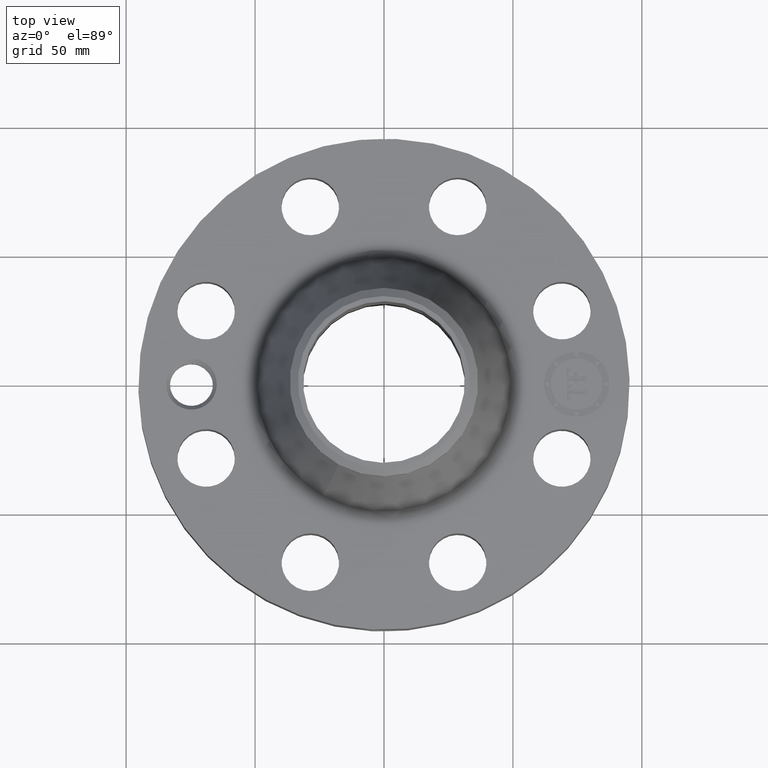
[diagram: clean part render]
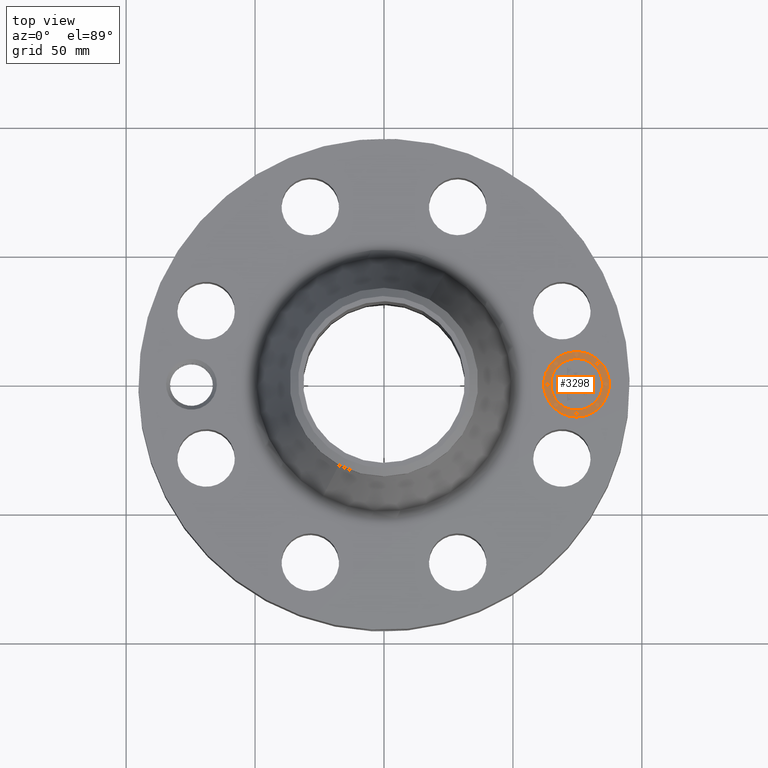
[diagram: same view with one face highlighted and labeled with its STEP entity id]
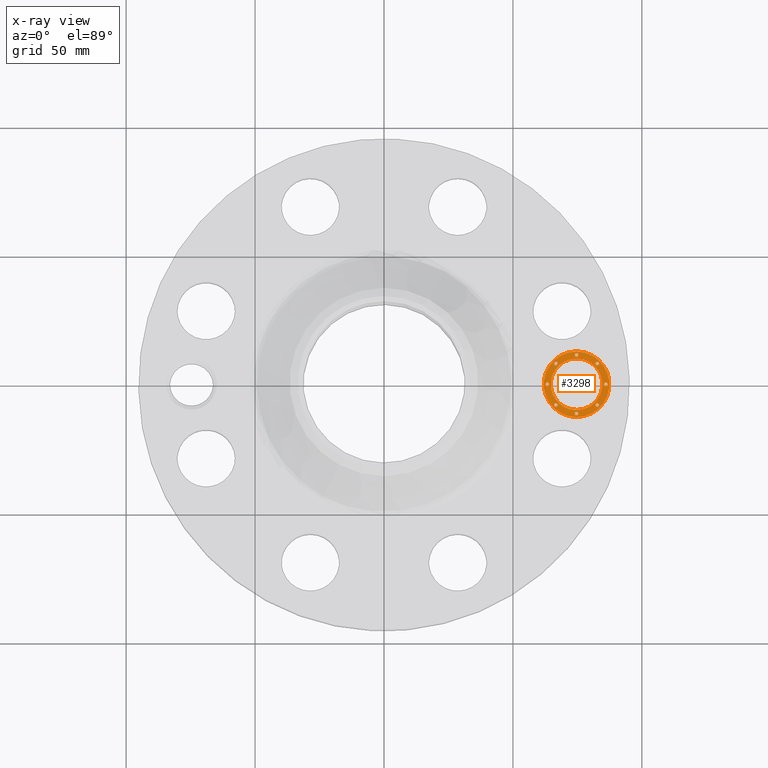
[diagram: x-ray of the same camera — body ghosted, the highlighted face saturated]
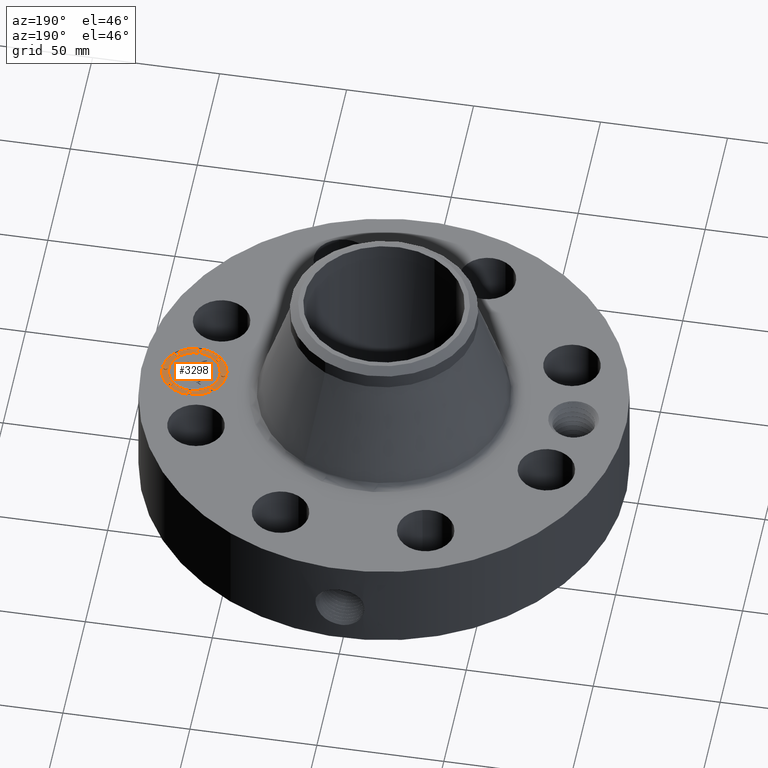
[diagram: same view with one face highlighted and labeled with its STEP entity id]
A machine part, top view. The second image highlights one B-rep face of the part: STEP entity #3298.
The next image is the same camera in x-ray: the body ghosted, the highlighted face saturated — about 0% of this face is hidden behind the body in this view.
A second angle (auxiliary view) of the same face is appended — the face is thin or edge-on in the first view.
In plain terms, the highlighted planar face has unit normal (0, 0, 1).
Its self-contained STEP definition (entity closure, byte-faithful):
#2401=AXIS2_PLACEMENT_3D('Circle Axis2P3D',#2399,#2400,$) ;
#2428=AXIS2_PLACEMENT_3D('Circle Axis2P3D',#2426,#2427,$) ;
#3130=AXIS2_PLACEMENT_3D('Plane Axis2P3D',#3127,#3128,#3129) ;
#3138=AXIS2_PLACEMENT_3D('Circle Axis2P3D',#3136,#3137,$) ;
#3147=AXIS2_PLACEMENT_3D('Circle Axis2P3D',#3145,#3146,$) ;
#3156=AXIS2_PLACEMENT_3D('Circle Axis2P3D',#3154,#3155,$) ;
#3165=AXIS2_PLACEMENT_3D('Circle Axis2P3D',#3163,#3164,$) ;
#3174=AXIS2_PLACEMENT_3D('Circle Axis2P3D',#3172,#3173,$) ;
#3183=AXIS2_PLACEMENT_3D('Circle Axis2P3D',#3181,#3182,$) ;
#3192=AXIS2_PLACEMENT_3D('Circle Axis2P3D',#3190,#3191,$) ;
#3201=AXIS2_PLACEMENT_3D('Circle Axis2P3D',#3199,#3200,$) ;
#3210=AXIS2_PLACEMENT_3D('Circle Axis2P3D',#3208,#3209,$) ;
#3219=AXIS2_PLACEMENT_3D('Circle Axis2P3D',#3217,#3218,$) ;
#3228=AXIS2_PLACEMENT_3D('Circle Axis2P3D',#3226,#3227,$) ;
#3237=AXIS2_PLACEMENT_3D('Circle Axis2P3D',#3235,#3236,$) ;
#3246=AXIS2_PLACEMENT_3D('Circle Axis2P3D',#3244,#3245,$) ;
#3255=AXIS2_PLACEMENT_3D('Circle Axis2P3D',#3253,#3254,$) ;
#3264=AXIS2_PLACEMENT_3D('Circle Axis2P3D',#3262,#3263,$) ;
#3273=AXIS2_PLACEMENT_3D('Circle Axis2P3D',#3271,#3272,$) ;
#3282=AXIS2_PLACEMENT_3D('Circle Axis2P3D',#3280,#3281,$) ;
#3291=AXIS2_PLACEMENT_3D('Circle Axis2P3D',#3289,#3290,$) ;
#2396=CARTESIAN_POINT('Vertex',(2.94000000001,-0.499999995002,1.73500000001)) ;
#2399=CARTESIAN_POINT('Axis2P3D Location',(2.94000000001,-6.25861751356E-015,1.73500000001)) ;
#2403=CARTESIAN_POINT('Vertex',(2.94000000001,0.499999995002,1.73500000001)) ;
#2426=CARTESIAN_POINT('Axis2P3D Location',(2.94000000001,-6.25861751356E-015,1.73500000001)) ;
#3127=CARTESIAN_POINT('Axis2P3D Location',(0.,0.,1.73500000001)) ;
#3136=CARTESIAN_POINT('Axis2P3D Location',(2.94000000001,-6.25861751356E-015,1.73500000001)) ;
#3140=CARTESIAN_POINT('Vertex',(2.94000000001,-0.393939390002,1.73500000001)) ;
#3142=CARTESIAN_POINT('Vertex',(2.94000000001,0.393939390002,1.73500000001)) ;
#3145=CARTESIAN_POINT('Axis2P3D Location',(2.94000000001,-6.25861751356E-015,1.73500000001)) ;
#3154=CARTESIAN_POINT('Axis2P3D Location',(2.49303030751,-7.53016856699E-015,1.73500000001)) ;
#3158=CARTESIAN_POINT('Vertex',(2.49303030751,-0.0303030300001,1.73500000001)) ;
#3160=CARTESIAN_POINT('Vertex',(2.49303030751,0.0303030300001,1.73500000001)) ;
#3163=CARTESIAN_POINT('Axis2P3D Location',(2.49303030751,-7.53016856699E-015,1.73500000001)) ;
#3172=CARTESIAN_POINT('Axis2P3D Location',(2.94000000001,0.446969692502,1.73500000001)) ;
#3176=CARTESIAN_POINT('Vertex',(2.94000000001,0.416666662502,1.73500000001)) ;
#3178=CARTESIAN_POINT('Vertex',(2.94000000001,0.477272722502,1.73500000001)) ;
#3181=CARTESIAN_POINT('Axis2P3D Location',(2.94000000001,0.446969692502,1.73500000001)) ;
#3190=CARTESIAN_POINT('Axis2P3D Location',(2.62394469946,0.316055300553,1.73500000001)) ;
#3194=CARTESIAN_POINT('Vertex',(2.62394469946,0.285752270553,1.73500000001)) ;
#3196=CARTESIAN_POINT('Vertex',(2.62394469946,0.346358330553,1.73500000001)) ;
#3199=CARTESIAN_POINT('Axis2P3D Location',(2.62394469946,0.316055300553,1.73500000001)) ;
#3208=CARTESIAN_POINT('Axis2P3D Location',(3.38696969251,5.46790886804E-015,1.73500000001)) ;
#3212=CARTESIAN_POINT('Vertex',(3.38696969251,-0.0303030300001,1.73500000001)) ;
#3214=CARTESIAN_POINT('Vertex',(3.38696969251,0.0303030300001,1.73500000001)) ;
#3217=CARTESIAN_POINT('Axis2P3D Location',(3.38696969251,5.46790886804E-015,1.73500000001)) ;
#3226=CARTESIAN_POINT('Axis2P3D Location',(3.25605530056,0.316055300553,1.73500000001)) ;
#3230=CARTESIAN_POINT('Vertex',(3.25605530056,0.285752270553,1.73500000001)) ;
#3232=CARTESIAN_POINT('Vertex',(3.25605530056,0.346358330553,1.73500000001)) ;
#3235=CARTESIAN_POINT('Axis2P3D Location',(3.25605530056,0.316055300553,1.73500000001)) ;
#3244=CARTESIAN_POINT('Axis2P3D Location',(2.94000000001,-0.446969692502,1.73500000001)) ;
#3248=CARTESIAN_POINT('Vertex',(2.94000000001,-0.416666662502,1.73500000001)) ;
#3250=CARTESIAN_POINT('Vertex',(2.94000000001,-0.477272722502,1.73500000001)) ;
#3253=CARTESIAN_POINT('Axis2P3D Location',(2.94000000001,-0.446969692502,1.73500000001)) ;
#3262=CARTESIAN_POINT('Axis2P3D Location',(2.62394469946,-0.316055300553,1.73500000001)) ;
#3266=CARTESIAN_POINT('Vertex',(2.62394469946,-0.285752270553,1.73500000001)) ;
#3268=CARTESIAN_POINT('Vertex',(2.62394469946,-0.346358330553,1.73500000001)) ;
#3271=CARTESIAN_POINT('Axis2P3D Location',(2.62394469946,-0.316055300553,1.73500000001)) ;
#3280=CARTESIAN_POINT('Axis2P3D Location',(3.25605530056,-0.316055300553,1.73500000001)) ;
#3284=CARTESIAN_POINT('Vertex',(3.25605530056,-0.285752270553,1.73500000001)) ;
#3286=CARTESIAN_POINT('Vertex',(3.25605530056,-0.346358330553,1.73500000001)) ;
#3289=CARTESIAN_POINT('Axis2P3D Location',(3.25605530056,-0.316055300553,1.73500000001)) ;
#2400=DIRECTION('Axis2P3D Direction',(0.,0.,0.0393700787402)) ;
#2427=DIRECTION('Axis2P3D Direction',(0.,0.,0.0393700787402)) ;
#3128=DIRECTION('Axis2P3D Direction',(0.,0.,0.0393700787402)) ;
#3129=DIRECTION('Axis2P3D XDirection',(0.0393700787402,0.,0.)) ;
#3137=DIRECTION('Axis2P3D Direction',(0.,0.,0.0393700787402)) ;
#3146=DIRECTION('Axis2P3D Direction',(0.,0.,0.0393700787402)) ;
#3155=DIRECTION('Axis2P3D Direction',(0.,0.,0.0393700787402)) ;
#3164=DIRECTION('Axis2P3D Direction',(0.,0.,0.0393700787402)) ;
#3173=DIRECTION('Axis2P3D Direction',(0.,0.,0.0393700787402)) ;
#3182=DIRECTION('Axis2P3D Direction',(0.,0.,0.0393700787402)) ;
#3191=DIRECTION('Axis2P3D Direction',(0.,0.,0.0393700787402)) ;
#3200=DIRECTION('Axis2P3D Direction',(0.,0.,0.0393700787402)) ;
#3209=DIRECTION('Axis2P3D Direction',(0.,0.,0.0393700787402)) ;
#3218=DIRECTION('Axis2P3D Direction',(0.,0.,0.0393700787402)) ;
#3227=DIRECTION('Axis2P3D Direction',(0.,0.,0.0393700787402)) ;
#3236=DIRECTION('Axis2P3D Direction',(0.,0.,0.0393700787402)) ;
#3245=DIRECTION('Axis2P3D Direction',(0.,0.,0.0393700787402)) ;
#3254=DIRECTION('Axis2P3D Direction',(0.,0.,0.0393700787402)) ;
#3263=DIRECTION('Axis2P3D Direction',(0.,0.,0.0393700787402)) ;
#3272=DIRECTION('Axis2P3D Direction',(0.,0.,0.0393700787402)) ;
#3281=DIRECTION('Axis2P3D Direction',(0.,0.,0.0393700787402)) ;
#3290=DIRECTION('Axis2P3D Direction',(0.,0.,0.0393700787402)) ;
#3133=ORIENTED_EDGE('',*,*,#2405,.T.) ;
#3134=ORIENTED_EDGE('',*,*,#2430,.T.) ;
#3151=ORIENTED_EDGE('',*,*,#3144,.F.) ;
#3152=ORIENTED_EDGE('',*,*,#3149,.F.) ;
#3169=ORIENTED_EDGE('',*,*,#3162,.F.) ;
#3170=ORIENTED_EDGE('',*,*,#3167,.F.) ;
#3187=ORIENTED_EDGE('',*,*,#3180,.F.) ;
#3188=ORIENTED_EDGE('',*,*,#3185,.F.) ;
#3205=ORIENTED_EDGE('',*,*,#3198,.F.) ;
#3206=ORIENTED_EDGE('',*,*,#3203,.F.) ;
#3223=ORIENTED_EDGE('',*,*,#3216,.F.) ;
#3224=ORIENTED_EDGE('',*,*,#3221,.F.) ;
#3241=ORIENTED_EDGE('',*,*,#3234,.F.) ;
#3242=ORIENTED_EDGE('',*,*,#3239,.F.) ;
#3259=ORIENTED_EDGE('',*,*,#3252,.F.) ;
#3260=ORIENTED_EDGE('',*,*,#3257,.F.) ;
#3277=ORIENTED_EDGE('',*,*,#3270,.F.) ;
#3278=ORIENTED_EDGE('',*,*,#3275,.F.) ;
#3295=ORIENTED_EDGE('',*,*,#3288,.F.) ;
#3296=ORIENTED_EDGE('',*,*,#3293,.F.) ;
#3153=FACE_BOUND('',#3150,.T.) ;
#3171=FACE_BOUND('',#3168,.T.) ;
#3189=FACE_BOUND('',#3186,.T.) ;
#3207=FACE_BOUND('',#3204,.T.) ;
#3225=FACE_BOUND('',#3222,.T.) ;
#3243=FACE_BOUND('',#3240,.T.) ;
#3261=FACE_BOUND('',#3258,.T.) ;
#3279=FACE_BOUND('',#3276,.T.) ;
#3297=FACE_BOUND('',#3294,.T.) ;
#3298=ADVANCED_FACE('PartBody',(#3135,#3153,#3171,#3189,#3207,#3225,#3243,#3261,#3279,#3297),#3131,.T.) ;
#2402=CIRCLE('generated circle',#2401,0.499999995002) ;
#2429=CIRCLE('generated circle',#2428,0.499999995002) ;
#3139=CIRCLE('generated circle',#3138,0.393939390002) ;
#3148=CIRCLE('generated circle',#3147,0.393939390002) ;
#3157=CIRCLE('generated circle',#3156,0.0303030300001) ;
#3166=CIRCLE('generated circle',#3165,0.0303030300001) ;
#3175=CIRCLE('generated circle',#3174,0.0303030300001) ;
#3184=CIRCLE('generated circle',#3183,0.0303030300001) ;
#3193=CIRCLE('generated circle',#3192,0.0303030300001) ;
#3202=CIRCLE('generated circle',#3201,0.0303030300001) ;
#3211=CIRCLE('generated circle',#3210,0.0303030300001) ;
#3220=CIRCLE('generated circle',#3219,0.0303030300001) ;
#3229=CIRCLE('generated circle',#3228,0.0303030300001) ;
#3238=CIRCLE('generated circle',#3237,0.0303030300001) ;
#3247=CIRCLE('generated circle',#3246,0.0303030300001) ;
#3256=CIRCLE('generated circle',#3255,0.0303030300001) ;
#3265=CIRCLE('generated circle',#3264,0.0303030300001) ;
#3274=CIRCLE('generated circle',#3273,0.0303030300001) ;
#3283=CIRCLE('generated circle',#3282,0.0303030300001) ;
#3292=CIRCLE('generated circle',#3291,0.0303030300001) ;
#2405=EDGE_CURVE('',#2404,#2397,#2402,.T.) ;
#2430=EDGE_CURVE('',#2397,#2404,#2429,.T.) ;
#3144=EDGE_CURVE('',#3141,#3143,#3139,.T.) ;
#3149=EDGE_CURVE('',#3143,#3141,#3148,.T.) ;
#3162=EDGE_CURVE('',#3159,#3161,#3157,.T.) ;
#3167=EDGE_CURVE('',#3161,#3159,#3166,.T.) ;
#3180=EDGE_CURVE('',#3177,#3179,#3175,.T.) ;
#3185=EDGE_CURVE('',#3179,#3177,#3184,.T.) ;
#3198=EDGE_CURVE('',#3195,#3197,#3193,.T.) ;
#3203=EDGE_CURVE('',#3197,#3195,#3202,.T.) ;
#3216=EDGE_CURVE('',#3213,#3215,#3211,.T.) ;
#3221=EDGE_CURVE('',#3215,#3213,#3220,.T.) ;
#3234=EDGE_CURVE('',#3231,#3233,#3229,.T.) ;
#3239=EDGE_CURVE('',#3233,#3231,#3238,.T.) ;
#3252=EDGE_CURVE('',#3249,#3251,#3247,.T.) ;
#3257=EDGE_CURVE('',#3251,#3249,#3256,.T.) ;
#3270=EDGE_CURVE('',#3267,#3269,#3265,.T.) ;
#3275=EDGE_CURVE('',#3269,#3267,#3274,.T.) ;
#3288=EDGE_CURVE('',#3285,#3287,#3283,.T.) ;
#3293=EDGE_CURVE('',#3287,#3285,#3292,.T.) ;
#3132=EDGE_LOOP('',(#3133,#3134)) ;
#3150=EDGE_LOOP('',(#3151,#3152)) ;
#3168=EDGE_LOOP('',(#3169,#3170)) ;
#3186=EDGE_LOOP('',(#3187,#3188)) ;
#3204=EDGE_LOOP('',(#3205,#3206)) ;
#3222=EDGE_LOOP('',(#3223,#3224)) ;
#3240=EDGE_LOOP('',(#3241,#3242)) ;
#3258=EDGE_LOOP('',(#3259,#3260)) ;
#3276=EDGE_LOOP('',(#3277,#3278)) ;
#3294=EDGE_LOOP('',(#3295,#3296)) ;
#3135=FACE_OUTER_BOUND('',#3132,.T.) ;
#3131=PLANE('',#3130) ;
#2397=VERTEX_POINT('',#2396) ;
#2404=VERTEX_POINT('',#2403) ;
#3141=VERTEX_POINT('',#3140) ;
#3143=VERTEX_POINT('',#3142) ;
#3159=VERTEX_POINT('',#3158) ;
#3161=VERTEX_POINT('',#3160) ;
#3177=VERTEX_POINT('',#3176) ;
#3179=VERTEX_POINT('',#3178) ;
#3195=VERTEX_POINT('',#3194) ;
#3197=VERTEX_POINT('',#3196) ;
#3213=VERTEX_POINT('',#3212) ;
#3215=VERTEX_POINT('',#3214) ;
#3231=VERTEX_POINT('',#3230) ;
#3233=VERTEX_POINT('',#3232) ;
#3249=VERTEX_POINT('',#3248) ;
#3251=VERTEX_POINT('',#3250) ;
#3267=VERTEX_POINT('',#3266) ;
#3269=VERTEX_POINT('',#3268) ;
#3285=VERTEX_POINT('',#3284) ;
#3287=VERTEX_POINT('',#3286) ;